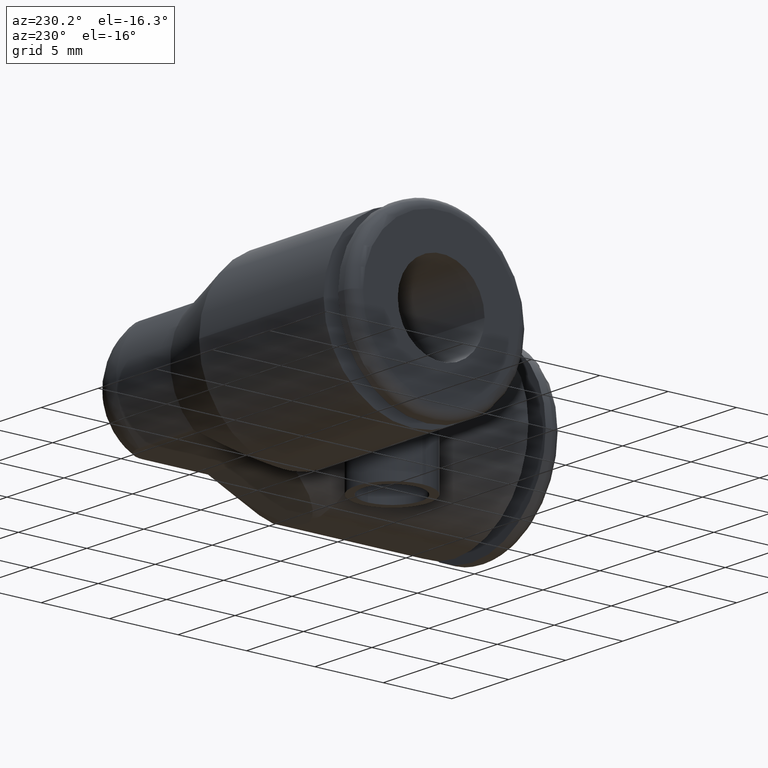
[diagram: clean part render]
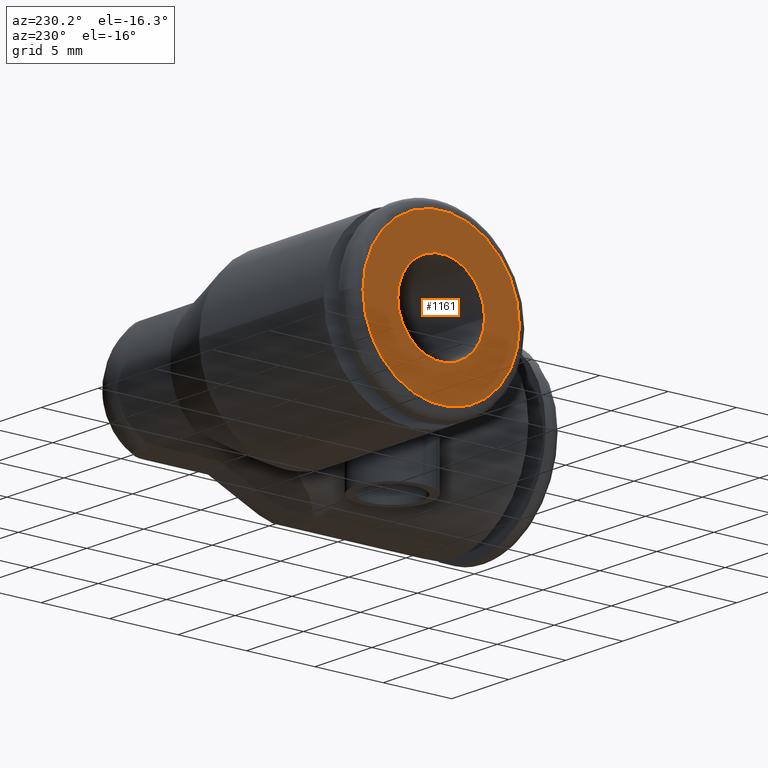
[diagram: same view with one face highlighted and labeled with its STEP entity id]
A machine part, auxiliary view. The second image highlights one B-rep face of the part: STEP entity #1161.
In plain terms, the highlighted planar face has unit normal (1, 0, 0).
Its self-contained STEP definition (entity closure, byte-faithful):
#252=CARTESIAN_POINT('',(-8.3E-1,0.E0,0.E0));
#253=DIRECTION('',(-1.E0,0.E0,0.E0));
#254=DIRECTION('',(0.E0,-1.E0,0.E0));
#255=AXIS2_PLACEMENT_3D('',#252,#253,#254);
#257=CARTESIAN_POINT('',(-8.3E-1,0.E0,0.E0));
#258=DIRECTION('',(-1.E0,0.E0,0.E0));
#259=DIRECTION('',(0.E0,1.E0,0.E0));
#260=AXIS2_PLACEMENT_3D('',#257,#258,#259);
#262=CARTESIAN_POINT('',(-8.3E-1,0.E0,0.E0));
#263=DIRECTION('',(-1.E0,0.E0,0.E0));
#264=DIRECTION('',(0.E0,-1.E0,0.E0));
#265=AXIS2_PLACEMENT_3D('',#262,#263,#264);
#277=CARTESIAN_POINT('',(-8.3E-1,0.E0,0.E0));
#278=DIRECTION('',(-1.E0,0.E0,0.E0));
#279=DIRECTION('',(0.E0,1.E0,0.E0));
#280=AXIS2_PLACEMENT_3D('',#277,#278,#279);
#892=CARTESIAN_POINT('',(-8.3E-1,-1.25E-1,0.E0));
#893=CARTESIAN_POINT('',(-8.3E-1,1.25E-1,0.E0));
#894=VERTEX_POINT('',#892);
#895=VERTEX_POINT('',#893);
#960=CARTESIAN_POINT('',(-8.3E-1,-2.249999964899E-1,0.E0));
#961=CARTESIAN_POINT('',(-8.3E-1,2.249999964899E-1,0.E0));
#962=VERTEX_POINT('',#960);
#963=VERTEX_POINT('',#961);
#1146=CARTESIAN_POINT('',(-8.3E-1,0.E0,0.E0));
#1147=DIRECTION('',(1.E0,0.E0,0.E0));
#1148=DIRECTION('',(0.E0,-1.E0,0.E0));
#1149=AXIS2_PLACEMENT_3D('',#1146,#1147,#1148);
#1150=PLANE('',#1149);
#1152=ORIENTED_EDGE('',*,*,#1151,.F.);
#1154=ORIENTED_EDGE('',*,*,#1153,.F.);
#1155=EDGE_LOOP('',(#1152,#1154));
#1156=FACE_OUTER_BOUND('',#1155,.F.);
#1157=ORIENTED_EDGE('',*,*,#1062,.T.);
#1158=ORIENTED_EDGE('',*,*,#1091,.T.);
#1159=EDGE_LOOP('',(#1157,#1158));
#1160=FACE_BOUND('',#1159,.F.);
#1161=ADVANCED_FACE('',(#1156,#1160),#1150,.F.);
#256=CIRCLE('',#255,1.25E-1);
#261=CIRCLE('',#260,1.25E-1);
#266=CIRCLE('',#265,2.249999964899E-1);
#281=CIRCLE('',#280,2.249999964899E-1);
#1062=EDGE_CURVE('',#894,#895,#256,.T.);
#1091=EDGE_CURVE('',#895,#894,#261,.T.);
#1151=EDGE_CURVE('',#962,#963,#266,.T.);
#1153=EDGE_CURVE('',#963,#962,#281,.T.);